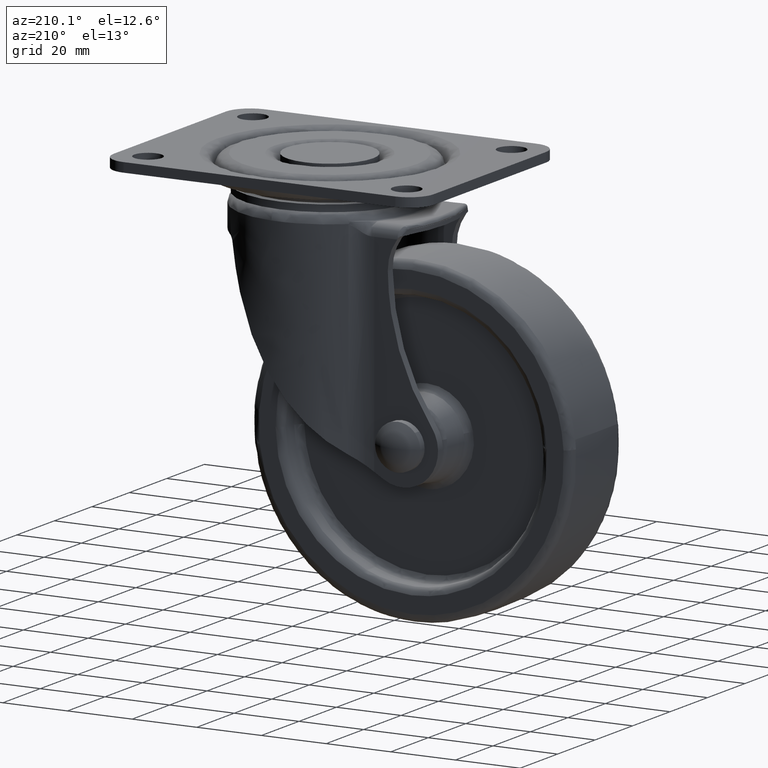
[diagram: clean part render]
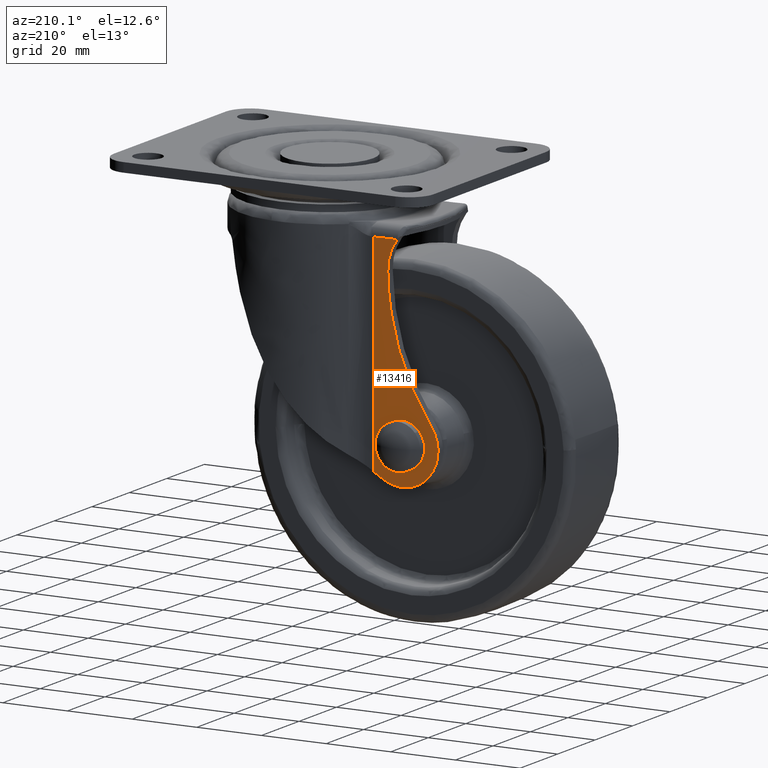
[diagram: same view with one face highlighted and labeled with its STEP entity id]
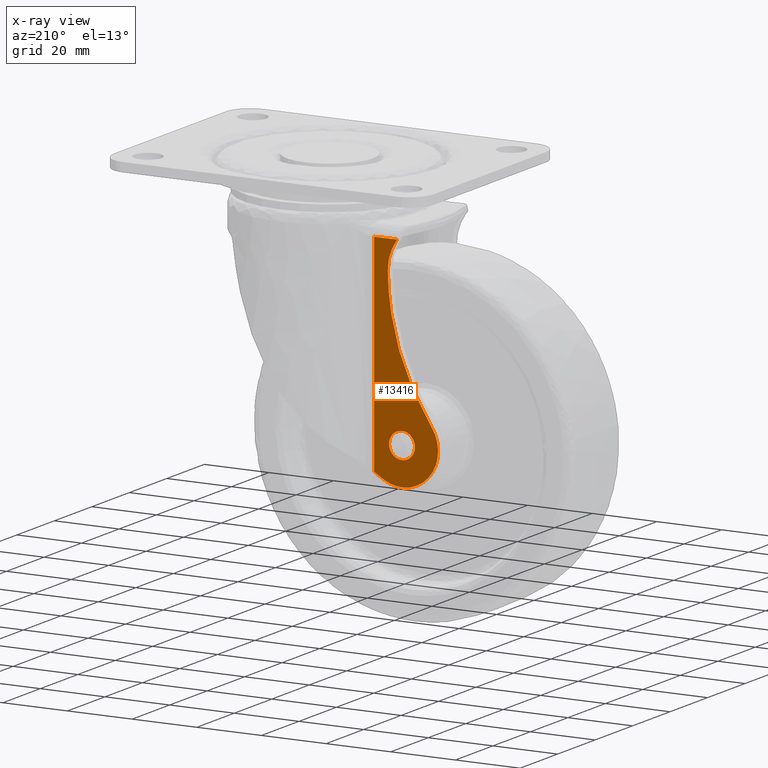
[diagram: x-ray of the same camera — body ghosted, the highlighted face saturated]
A machine part, auxiliary view. The second image highlights one B-rep face of the part: STEP entity #13416.
The next image is the same camera in x-ray: the body ghosted, the highlighted face saturated — about 0% of this face is hidden behind the body in this view.
In plain terms, the highlighted face is a freeform B-spline surface patch.
Its self-contained STEP definition (entity closure, byte-faithful):
#8031=CARTESIAN_POINT('',(-35.753692429204612,18.417225999999950,-70.097571848288609));
#8032=VERTEX_POINT('',#8031);
#8038=CARTESIAN_POINT('',(-32.999587000000091,18.417225999999950,-68.998794000000004));
#8039=VERTEX_POINT('',#8038);
#8040=CARTESIAN_POINT('',(-32.999587000000091,18.417225999999950,-68.998794000000004));
#8041=CARTESIAN_POINT('',(-33.410926428431061,18.417225999999950,-68.998654093817223));
#8042=CARTESIAN_POINT('',(-34.423477511336380,18.417225999999939,-69.156176866489858));
#8043=CARTESIAN_POINT('',(-35.318126626518691,18.417225999999950,-69.682882259233281));
#8044=CARTESIAN_POINT('',(-35.753692429204612,18.417225999999950,-70.097571848288609));
#8045=B_SPLINE_CURVE_WITH_KNOTS('',3,(#8040,#8041,#8042,#8043,#8044),.UNSPECIFIED.,.F.,.U.,(4,1,4),(0.000000148256473,1.234075082243060,3.037702426422225),.UNSPECIFIED.);
#8046=EDGE_CURVE('',#8039,#8032,#8045,.T.);
#8048=CARTESIAN_POINT('',(-28.998587000003791,18.417225999999950,-72.999788560432918));
#8049=VERTEX_POINT('',#8048);
#8050=CARTESIAN_POINT('',(-28.998587000003791,18.417225999999950,-72.999788560432918));
#8051=CARTESIAN_POINT('',(-28.998251538658650,18.417225999999971,-72.541477539909906));
#8052=CARTESIAN_POINT('',(-29.129474027731789,18.417225999999939,-71.788875010958108));
#8053=CARTESIAN_POINT('',(-29.678129865997921,18.417225999999960,-70.663997919382211));
#8054=CARTESIAN_POINT('',(-30.516405698632219,18.417225999999960,-69.761525785624343));
#8055=CARTESIAN_POINT('',(-31.723090160900341,18.417225999999960,-69.135834792515340));
#8056=CARTESIAN_POINT('',(-32.574040805983600,18.417225999999900,-68.998561448010307));
#8057=CARTESIAN_POINT('',(-32.999587000000091,18.417225999999950,-68.998794000000004));
#8058=B_SPLINE_CURVE_WITH_KNOTS('',3,(#8050,#8051,#8052,#8053,#8054,#8055,#8056,#8057),.UNSPECIFIED.,.F.,.U.,(4,1,1,1,1,4),(0.000000578137883,1.374820936187895,2.258691694183484,3.731599327621811,5.008308400916075,6.284910747229314),.UNSPECIFIED.);
#8059=EDGE_CURVE('',#8049,#8039,#8058,.T.);
#8061=CARTESIAN_POINT('',(-32.999587000000091,18.417225999999950,-77.000794000000013));
#8062=VERTEX_POINT('',#8061);
#8063=CARTESIAN_POINT('',(-32.999587000000091,18.417225999999950,-77.000794000000013));
#8064=CARTESIAN_POINT('',(-32.574043082630148,18.417225999999939,-77.001024620924213));
#8065=CARTESIAN_POINT('',(-31.723059303557950,18.417225999999950,-76.863773515987788));
#8066=CARTESIAN_POINT('',(-30.693160131580559,18.417225999999960,-76.329494636168732));
#8067=CARTESIAN_POINT('',(-29.921117071921721,18.417225999999939,-75.612057571044318));
#8068=CARTESIAN_POINT('',(-29.463051551043989,18.417225999999911,-74.926542185185568));
#8069=CARTESIAN_POINT('',(-29.098816929479479,18.417226000000021,-74.047106346953498));
#8070=CARTESIAN_POINT('',(-28.998311893381320,18.417225999999889,-73.425355491430665));
#8071=CARTESIAN_POINT('',(-28.998587000003791,18.417225999999950,-72.999788560432918));
#8072=B_SPLINE_CURVE_WITH_KNOTS('',3,(#8063,#8064,#8065,#8066,#8067,#8068,#8069,#8070,#8071),.UNSPECIFIED.,.F.,.U.,(4,1,1,1,1,1,4),(0.000000570707726,1.276604160807225,2.553314479023932,3.437006854900356,4.419062318875997,5.008313291968918,6.284916879042271),.UNSPECIFIED.);
#8073=EDGE_CURVE('',#8062,#8049,#8072,.T.);
#8075=CARTESIAN_POINT('',(-36.054574426225422,18.417225999999950,-75.583408436484859));
#8076=VERTEX_POINT('',#8075);
#8077=CARTESIAN_POINT('',(-36.054574426225422,18.417225999999950,-75.583408436484859));
#8078=CARTESIAN_POINT('',(-35.657817538714028,18.417225999999900,-76.054300495898303));
#8079=CARTESIAN_POINT('',(-34.700899000529553,18.417226000000049,-76.760965240307499));
#8080=CARTESIAN_POINT('',(-33.542839640614659,18.417225999999921,-77.001445115245104));
#8081=CARTESIAN_POINT('',(-32.999587000000091,18.417225999999950,-77.000794000000013));
#8082=B_SPLINE_CURVE_WITH_KNOTS('',3,(#8077,#8078,#8079,#8080,#8081),.UNSPECIFIED.,.F.,.U.,(4,1,4),(0.000000164976141,1.846689688021548,3.476183032692364),.UNSPECIFIED.);
#8083=EDGE_CURVE('',#8076,#8062,#8082,.T.);
#8118=CARTESIAN_POINT('',(-37.000586999996393,18.417225999999950,-72.999799439567127));
#8119=VERTEX_POINT('',#8118);
#8120=CARTESIAN_POINT('',(-37.000586999996393,18.417225999999950,-72.999799439567127));
#8121=CARTESIAN_POINT('',(-37.000694582189460,18.417225999999950,-73.380140584672361));
#8122=CARTESIAN_POINT('',(-36.866163158294498,18.417225999999960,-74.316352069504674));
#8123=CARTESIAN_POINT('',(-36.414194046858867,18.417225999999960,-75.159335587521966));
#8124=CARTESIAN_POINT('',(-36.054574426225422,18.417225999999950,-75.583408436484859));
#8125=B_SPLINE_CURVE_WITH_KNOTS('',3,(#8120,#8121,#8122,#8123,#8124),.UNSPECIFIED.,.F.,.U.,(4,1,4),(0.000000100417979,1.141053857546868,2.808731724680964),.UNSPECIFIED.);
#8126=EDGE_CURVE('',#8119,#8076,#8125,.T.);
#8128=CARTESIAN_POINT('',(-35.753692429204612,18.417225999999950,-70.097571848288609));
#8129=CARTESIAN_POINT('',(-36.122091618881591,18.417225999999900,-70.446527799995607));
#8130=CARTESIAN_POINT('',(-36.762985524851622,18.417226000000049,-71.343069930514005));
#8131=CARTESIAN_POINT('',(-37.001324508018037,18.417225999999921,-72.424682941949001));
#8132=CARTESIAN_POINT('',(-37.000586999996393,18.417225999999950,-72.999799439567127));
#8133=B_SPLINE_CURVE_WITH_KNOTS('',3,(#8128,#8129,#8130,#8131,#8132),.UNSPECIFIED.,.F.,.U.,(4,1,4),(0.000000158831509,1.522171368718108,3.247216283990371),.UNSPECIFIED.);
#8134=EDGE_CURVE('',#8032,#8119,#8133,.T.);
#11442=CARTESIAN_POINT('',(-24.353478015776801,18.417225999999999,-16.728105268373451));
#11443=VERTEX_POINT('',#11442);
#11502=CARTESIAN_POINT('',(-31.490471739632049,18.417225999999950,-16.702574059976200));
#11503=VERTEX_POINT('',#11502);
#11513=CARTESIAN_POINT('',(-31.490471739632000,18.417225999999999,-16.702574059976200));
#11514=CARTESIAN_POINT('',(-30.301195924325501,18.417225999999999,-16.731837386614771));
#11515=CARTESIAN_POINT('',(-29.111665900546789,18.417225999999999,-16.747998615758821));
#11516=CARTESIAN_POINT('',(-26.732477371087821,18.417226000000010,-16.755823990632610));
#11517=CARTESIAN_POINT('',(-25.542948348638671,18.417225999999999,-16.747478248603560));
#11518=CARTESIAN_POINT('',(-24.353478015776801,18.417225999999999,-16.728105268373451));
#11519=B_SPLINE_CURVE_WITH_KNOTS('',3,(#11513,#11514,#11515,#11516,#11517,#11518),.UNSPECIFIED.,.F.,.U.,(4,2,4),(0.0,0.500000000000000,1.0),.UNSPECIFIED.);
#11520=EDGE_CURVE('',#11503,#11443,#11519,.T.);
#12473=CARTESIAN_POINT('',(-24.353478015776801,18.417225999999950,-81.193483146101215));
#12474=VERTEX_POINT('',#12473);
#12475=CARTESIAN_POINT('',(-24.353478015776801,18.417225999999999,-16.728105268373451));
#12476=CARTESIAN_POINT('',(-24.353478015776801,18.417225999999950,-81.193483146101215));
#12477=QUASI_UNIFORM_CURVE('',1,(#12475,#12476),.UNSPECIFIED.,.F.,.U.);
#12478=EDGE_CURVE('',#11443,#12474,#12477,.T.);
#12621=CARTESIAN_POINT('',(-28.595327686260649,18.417225999999950,-25.582395179665799));
#12622=VERTEX_POINT('',#12621);
#12623=CARTESIAN_POINT('',(-28.595327686260649,18.417225999999950,-25.582395179665799));
#12624=CARTESIAN_POINT('',(-28.578045836407171,18.417225999999740,-24.195734683311660));
#12625=CARTESIAN_POINT('',(-28.853673233734991,18.417226000000110,-22.112606489794182));
#12626=CARTESIAN_POINT('',(-29.931053384653119,18.417225999999872,-19.123092343992059));
#12627=CARTESIAN_POINT('',(-30.837518451636900,18.417225999999971,-17.574804566634409));
#12628=CARTESIAN_POINT('',(-31.490471739632049,18.417225999999950,-16.702574059976200));
#12629=B_SPLINE_CURVE_WITH_KNOTS('',3,(#12623,#12624,#12625,#12626,#12627,#12628),.UNSPECIFIED.,.F.,.U.,(4,1,1,4),(0.000000046563677,4.160080700938170,6.240070309538981,9.508684261259090),.UNSPECIFIED.);
#12630=EDGE_CURVE('',#12622,#11503,#12629,.T.);
#12726=CARTESIAN_POINT('',(-27.519969758222050,18.417225999999950,-83.061225355197593));
#12727=VERTEX_POINT('',#12726);
#12733=CARTESIAN_POINT('',(-27.519969758222050,18.417225999999950,-83.061225355197593));
#12734=CARTESIAN_POINT('',(-26.452576158659141,18.417225999999960,-82.459113192185669));
#12735=CARTESIAN_POINT('',(-25.396816309788090,18.417225999999960,-81.836376993086077));
#12736=CARTESIAN_POINT('',(-24.353478015776801,18.417225999999950,-81.193483146101215));
#12737=B_SPLINE_CURVE_WITH_KNOTS('',3,(#12733,#12734,#12735,#12736),.UNSPECIFIED.,.F.,.U.,(4,4),(6.525802E-011,3.676525337965918),.UNSPECIFIED.);
#12738=EDGE_CURVE('',#12727,#12474,#12737,.T.);
#13068=CARTESIAN_POINT('',(-42.078594636117202,18.417225999999950,-66.879230162148502));
#13069=VERTEX_POINT('',#13068);
#13088=CARTESIAN_POINT('',(-42.078594636117202,18.417225999999950,-66.879230162148502));
#13089=CARTESIAN_POINT('',(-39.411341633521182,18.417225999999939,-63.136979157057098));
#13090=CARTESIAN_POINT('',(-34.848225056356803,18.417225999999960,-55.244153306106313));
#13091=CARTESIAN_POINT('',(-30.995601799851439,18.417225999999939,-44.246187871702759));
#13092=CARTESIAN_POINT('',(-29.061570591754101,18.417225999999971,-34.308770274956643));
#13093=CARTESIAN_POINT('',(-28.632598774786761,18.417225999999971,-28.684118833323900));
#13094=CARTESIAN_POINT('',(-28.595327686260649,18.417225999999950,-25.582395179665799));
#13095=B_SPLINE_CURVE_WITH_KNOTS('',3,(#13088,#13089,#13090,#13091,#13092,#13093,#13094),.UNSPECIFIED.,.F.,.U.,(4,1,1,1,4),(0.000000020118755,13.786444067357200,27.228203715372789,34.810751432514422,44.116594737230322),.UNSPECIFIED.);
#13096=EDGE_CURVE('',#13069,#12622,#13095,.T.);
#13168=CARTESIAN_POINT('',(-42.078594636117202,18.417225999999950,-66.879230162148502));
#13169=CARTESIAN_POINT('',(-42.785241063918789,18.417225999999939,-67.869801493148586));
#13170=CARTESIAN_POINT('',(-43.729163677083129,18.417225999999960,-69.799321410589556));
#13171=CARTESIAN_POINT('',(-44.184449820997443,18.417225999999950,-72.449219709886648));
#13172=CARTESIAN_POINT('',(-44.125313845508778,18.417225999999950,-74.810023021181209));
#13173=CARTESIAN_POINT('',(-43.580873592299859,18.417225999999950,-77.240906437706187));
#13174=CARTESIAN_POINT('',(-42.338571689118083,18.417225999999971,-79.631607138416882));
#13175=CARTESIAN_POINT('',(-40.809272212903181,18.417225999999960,-81.386129750152449));
#13176=CARTESIAN_POINT('',(-39.187023270041948,18.417225999999989,-82.697391010532868));
#13177=CARTESIAN_POINT('',(-37.420688016962671,18.417225999999889,-83.662854664949364));
#13178=CARTESIAN_POINT('',(-35.315529666944322,18.417225999999690,-84.325251155422535));
#13179=CARTESIAN_POINT('',(-33.081744312117962,18.417226000000142,-84.582773676984402));
#13180=CARTESIAN_POINT('',(-30.369386179636159,18.417225999999800,-84.320501701550199));
#13181=CARTESIAN_POINT('',(-28.511171495958148,18.417225999999950,-83.620921060600665));
#13182=CARTESIAN_POINT('',(-27.519969758222050,18.417225999999950,-83.061225355197593));
#13183=B_SPLINE_CURVE_WITH_KNOTS('',3,(#13168,#13169,#13170,#13171,#13172,#13173,#13174,#13175,#13176,#13177,#13178,#13179,#13180,#13181,#13182),.UNSPECIFIED.,.F.,.U.,(4,1,1,1,1,1,1,1,1,1,1,1,4),(0.000000761396482,3.650235764952882,6.358580226246026,8.007112549780914,10.715404278559820,13.777011258791481,16.014045963594921,17.662717901242399,20.017686107840710,22.019519371931342,24.256812972449989,26.729601343459802,30.144374698995300),.UNSPECIFIED.);
#13184=EDGE_CURVE('',#13069,#12727,#13183,.T.);
#13395=CARTESIAN_POINT('',(-45.136174347538557,18.417225999999999,-13.316306102406450));
#13396=CARTESIAN_POINT('',(-45.136174347538557,18.417225999999999,-87.881985423427949));
#13397=CARTESIAN_POINT('',(-23.364767886351970,18.417225999999999,-13.316306102406450));
#13398=CARTESIAN_POINT('',(-23.364767886351970,18.417225999999999,-87.881985423427935));
#13399=B_SPLINE_SURFACE_WITH_KNOTS('',1,1,((#13395,#13397),(#13396,#13398)),.UNSPECIFIED.,.F.,.F.,.U.,(2,2),(2,2),(0.0,74.565679321021491),(0.0,21.771406461186590),.UNSPECIFIED.);
#13400=ORIENTED_EDGE('',*,*,#12630,.T.);
#13401=ORIENTED_EDGE('',*,*,#11520,.T.);
#13402=ORIENTED_EDGE('',*,*,#12478,.T.);
#13403=ORIENTED_EDGE('',*,*,#12738,.F.);
#13404=ORIENTED_EDGE('',*,*,#13184,.F.);
#13405=ORIENTED_EDGE('',*,*,#13096,.T.);
#13406=EDGE_LOOP('',(#13400,#13401,#13402,#13403,#13404,#13405));
#13407=FACE_OUTER_BOUND('',#13406,.T.);
#13408=ORIENTED_EDGE('',*,*,#8073,.T.);
#13409=ORIENTED_EDGE('',*,*,#8059,.T.);
#13410=ORIENTED_EDGE('',*,*,#8046,.T.);
#13411=ORIENTED_EDGE('',*,*,#8134,.T.);
#13412=ORIENTED_EDGE('',*,*,#8126,.T.);
#13413=ORIENTED_EDGE('',*,*,#8083,.T.);
#13414=EDGE_LOOP('',(#13408,#13409,#13410,#13411,#13412,#13413));
#13415=FACE_BOUND('',#13414,.T.);
#13416=ADVANCED_FACE('',(#13407,#13415),#13399,.F.);